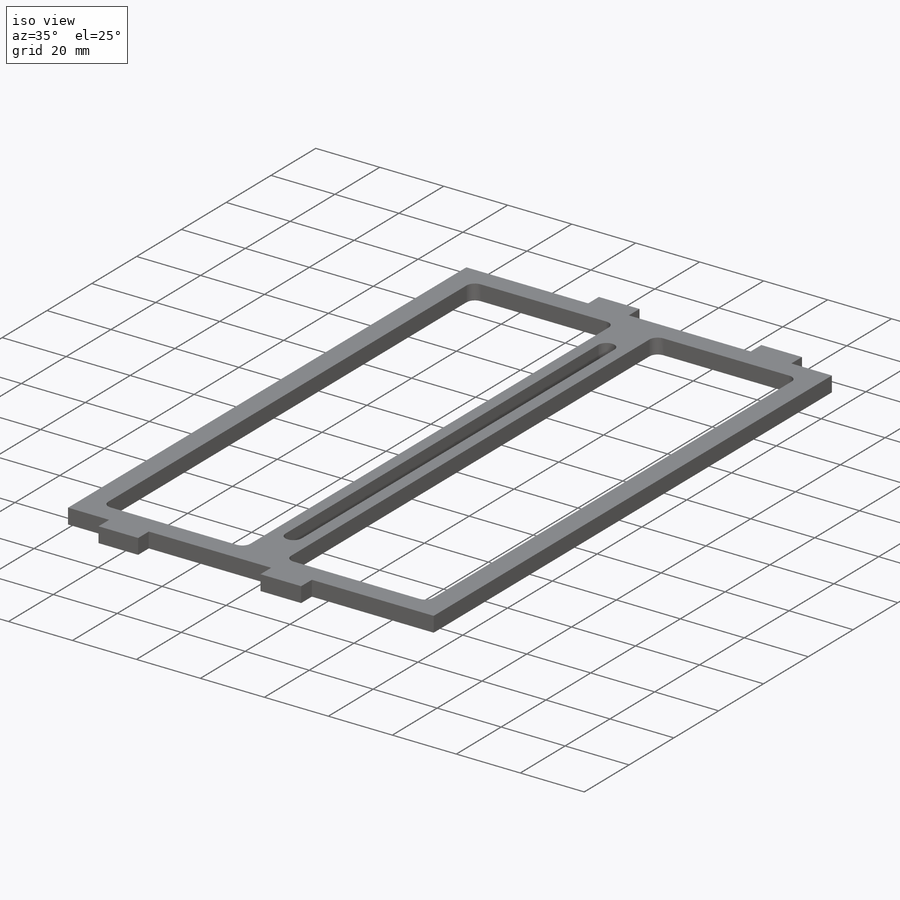
[diagram: iso view]
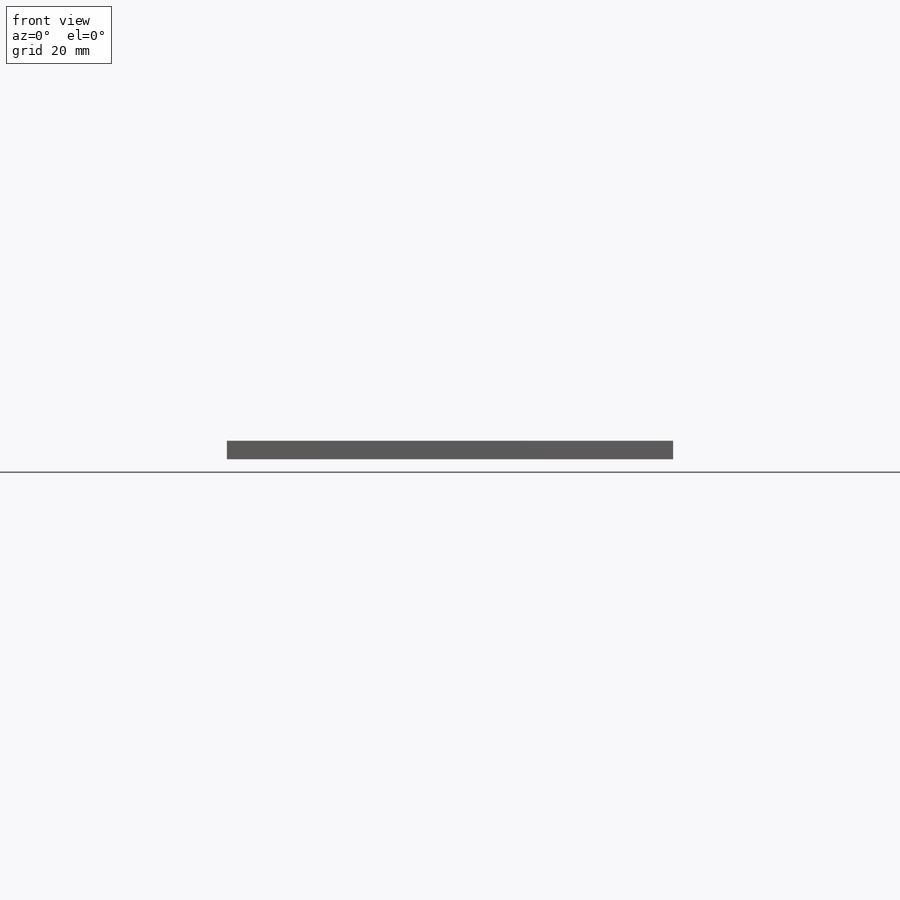
[diagram: front view]
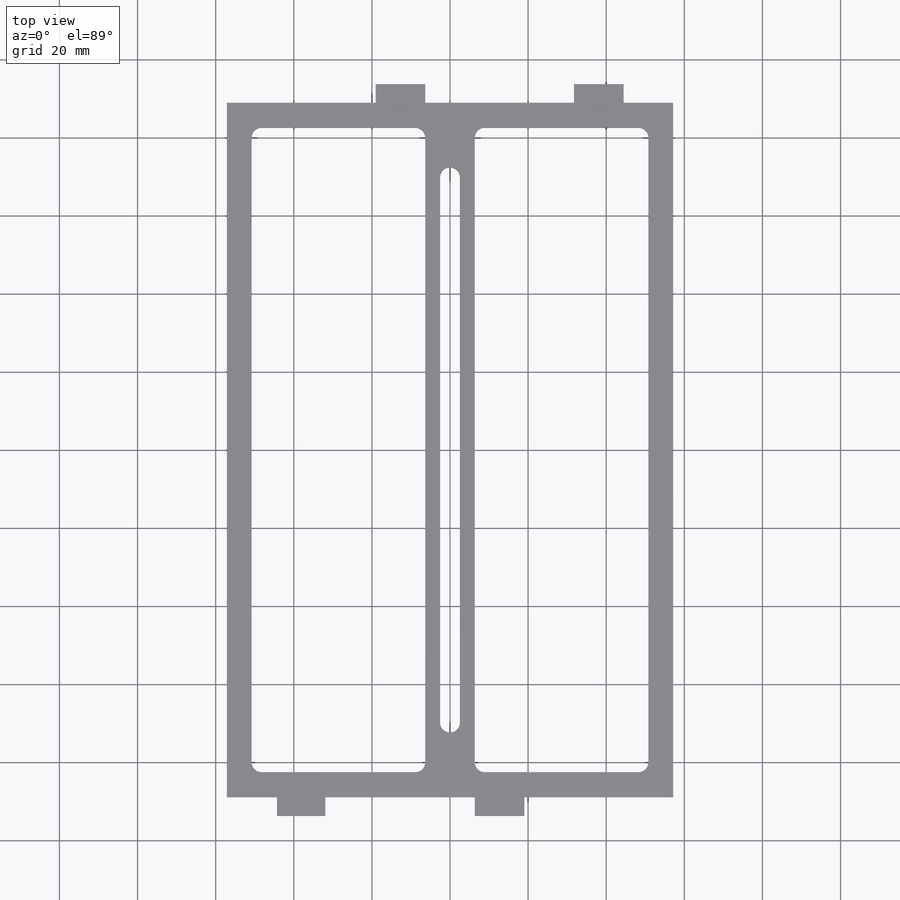
[diagram: top view]
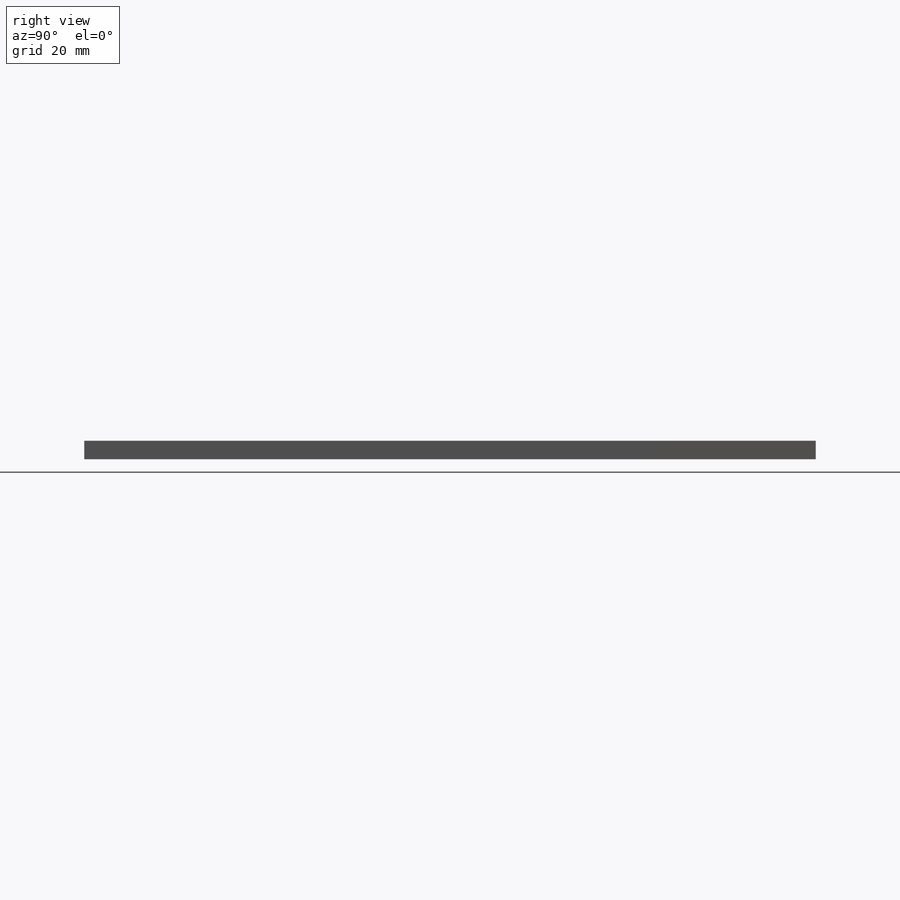
[diagram: right view]
SOLIDWORKS PART (.sldprt)
format: sldprt  version: not decoded by parser v0  size: 485,888 bytes
history: native  units: mm
features: sketch x5, extrude x5, fillet x3, material x1 (+11 scaffold rows collapsed)
feature tree (25):
  scaffold x11  (default folders/planes/origin — collapsed)
  material  "6061-T6 (SS)"
  sketch  "Sketch1"  dims[D1=114.3mm D2=177.8mm D3=6.35mm]
  extrude  "Boss-Extrude1"  Depth=4.7625mm
  sketch  "Sketch2"  dims[c1.D1=19.05mm c1.D2=50.8mm c1.D3=12.7mm c1.D4=4.7625mm c2.D4=90.0deg]
  extrude  "Boss-Extrude2"  Depth=4.7625mm
  sketch  "Sketch3"  dims[D1=12.7mm D2=12.7mm D3=19.05mm D4=50.8mm]
  extrude  "Boss-Extrude3"  Depth=4.7625mm
  fillet  "Fillet1"  Radius=2.54mm
  sketch  "Sketch4"  dims[D1=12.7mm D2=5.08mm D3=139.7mm D4=~143.477721deg]
  extrude  "Boss-Extrude4"  Depth=4.7625mm
  fillet  "Fillet2"  Radius=2.54mm
  sketch  "Sketch5"  dims[D1=12.7mm D2=101.6mm D3=5.08mm]
  extrude  "Boss-Extrude5"  Depth=5.08mm
  fillet  "Fillet3"  Radius=2.54mm
decode coverage: 13 of 13 modeling features carry decoded parameters
note: ~ marks probable driven/reference dimensions
note: suppression state not decoded; provenance and decode notes live in map.json
